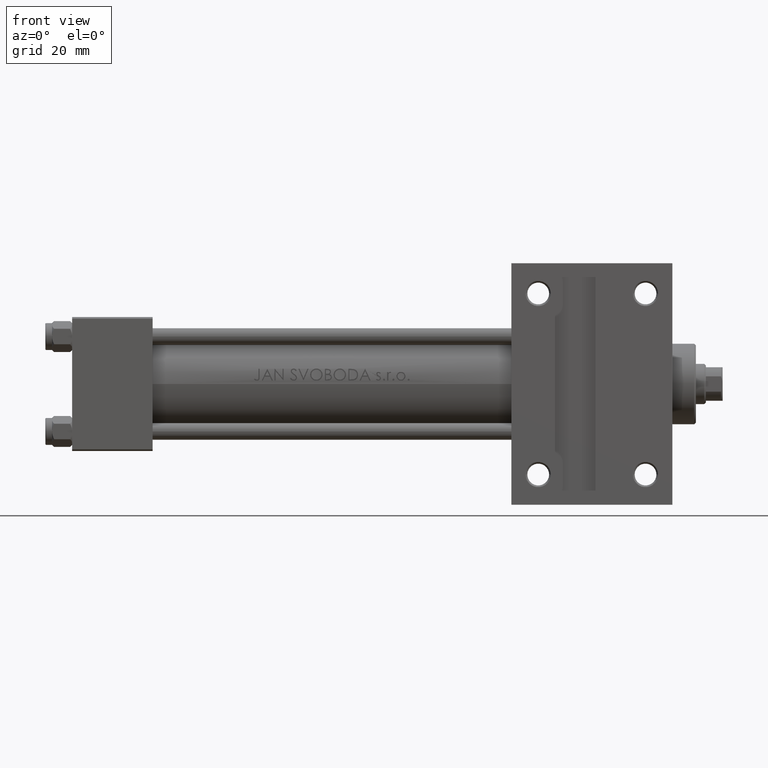
[diagram: clean part render]
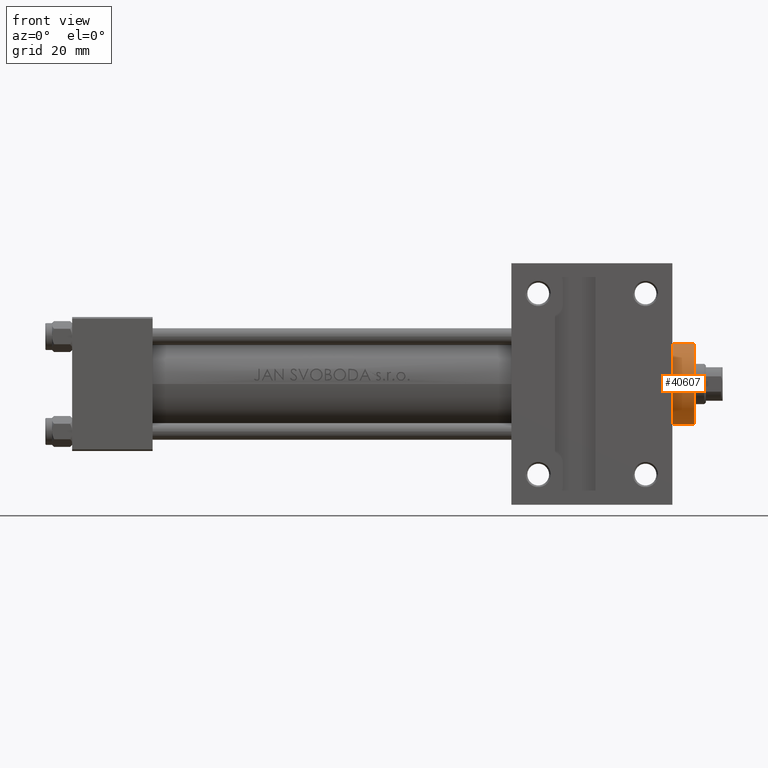
[diagram: same view with one face highlighted and labeled with its STEP entity id]
A machine part, front view. The second image highlights one B-rep face of the part: STEP entity #40607.
In plain terms, the highlighted cylindrical surface (partial cylindrical patch) has radius 12 mm, axis along (-1, 0, 0).
Its self-contained STEP definition (entity closure, byte-faithful):
#2124 = VECTOR ( 'NONE', #42606, 1000.000000000000000 ) ;
#2933 = CIRCLE ( 'NONE', #23700, 12.00000000000000178 ) ;
#6726 = ORIENTED_EDGE ( 'NONE', *, *, #39353, .F. ) ;
#9496 = VERTEX_POINT ( 'NONE', #43582 ) ;
#10600 = EDGE_LOOP ( 'NONE', ( #47517, #28778, #34832, #6726 ) ) ;
#10632 = CARTESIAN_POINT ( 'NONE',  ( -12.00000000000000178, 0.000000000000000000, 35.19999999999999574 ) ) ;
#10869 = AXIS2_PLACEMENT_3D ( 'NONE', #33117, #22030, #36276 ) ;
#13215 = CARTESIAN_POINT ( 'NONE',  ( 12.00000000000000178, 1.469576158976824144E-15, 35.70000000000000284 ) ) ;
#13456 = CARTESIAN_POINT ( 'NONE',  ( -12.00000000000000178, 0.000000000000000000, 35.70000000000000284 ) ) ;
#13571 = DIRECTION ( 'NONE',  ( 1.000000000000000000, 0.000000000000000000, 0.000000000000000000 ) ) ;
#14088 = CARTESIAN_POINT ( 'NONE',  ( 0.000000000000000000, 0.000000000000000000, 28.69999999999999929 ) ) ;
#17419 = EDGE_CURVE ( 'NONE', #9496, #28690, #23319, .T. ) ;
#20677 = DIRECTION ( 'NONE',  ( -0.000000000000000000, -0.000000000000000000, -1.000000000000000000 ) ) ;
#20791 = DIRECTION ( 'NONE',  ( 0.000000000000000000, 0.000000000000000000, -1.000000000000000000 ) ) ;
#20847 = EDGE_CURVE ( 'NONE', #28690, #41649, #22171, .T. ) ;
#21565 = FACE_OUTER_BOUND ( 'NONE', #10600, .T. ) ;
#22026 = EDGE_CURVE ( 'NONE', #34823, #9496, #2933, .T. ) ;
#22030 = DIRECTION ( 'NONE',  ( -0.000000000000000000, -0.000000000000000000, -1.000000000000000000 ) ) ;
#22171 = CIRCLE ( 'NONE', #31443, 12.00000000000000178 ) ;
#23319 = LINE ( 'NONE', #13215, #2124 ) ;
#23700 = AXIS2_PLACEMENT_3D ( 'NONE', #28015, #20791, #13571 ) ;
#27670 = LINE ( 'NONE', #13456, #30840 ) ;
#28015 = CARTESIAN_POINT ( 'NONE',  ( 0.000000000000000000, 0.000000000000000000, 35.19999999999999574 ) ) ;
#28690 = VERTEX_POINT ( 'NONE', #43583 ) ;
#28778 = ORIENTED_EDGE ( 'NONE', *, *, #17419, .T. ) ;
#30840 = VECTOR ( 'NONE', #20677, 1000.000000000000000 ) ;
#31443 = AXIS2_PLACEMENT_3D ( 'NONE', #14088, #36493, #47550 ) ;
#31922 = CARTESIAN_POINT ( 'NONE',  ( -12.00000000000000178, 0.000000000000000000, 28.69999999999999929 ) ) ;
#32884 = CYLINDRICAL_SURFACE ( 'NONE', #10869, 12.00000000000000178 ) ;
#33117 = CARTESIAN_POINT ( 'NONE',  ( 0.000000000000000000, 0.000000000000000000, 35.70000000000000284 ) ) ;
#34823 = VERTEX_POINT ( 'NONE', #10632 ) ;
#34832 = ORIENTED_EDGE ( 'NONE', *, *, #20847, .T. ) ;
#36276 = DIRECTION ( 'NONE',  ( -1.000000000000000000, 0.000000000000000000, 0.000000000000000000 ) ) ;
#36493 = DIRECTION ( 'NONE',  ( 0.000000000000000000, 0.000000000000000000, 1.000000000000000000 ) ) ;
#39353 = EDGE_CURVE ( 'NONE', #34823, #41649, #27670, .T. ) ;
#40607 = ADVANCED_FACE ( 'NONE', ( #21565 ), #32884, .T. ) ;
#41649 = VERTEX_POINT ( 'NONE', #31922 ) ;
#42606 = DIRECTION ( 'NONE',  ( -0.000000000000000000, -0.000000000000000000, -1.000000000000000000 ) ) ;
#43582 = CARTESIAN_POINT ( 'NONE',  ( 12.00000000000000178, 1.469576158976824144E-15, 35.19999999999999574 ) ) ;
#43583 = CARTESIAN_POINT ( 'NONE',  ( 12.00000000000000178, 1.469576158976824144E-15, 28.69999999999999929 ) ) ;
#47517 = ORIENTED_EDGE ( 'NONE', *, *, #22026, .T. ) ;
#47550 = DIRECTION ( 'NONE',  ( 1.000000000000000000, 0.000000000000000000, 0.000000000000000000 ) ) ;